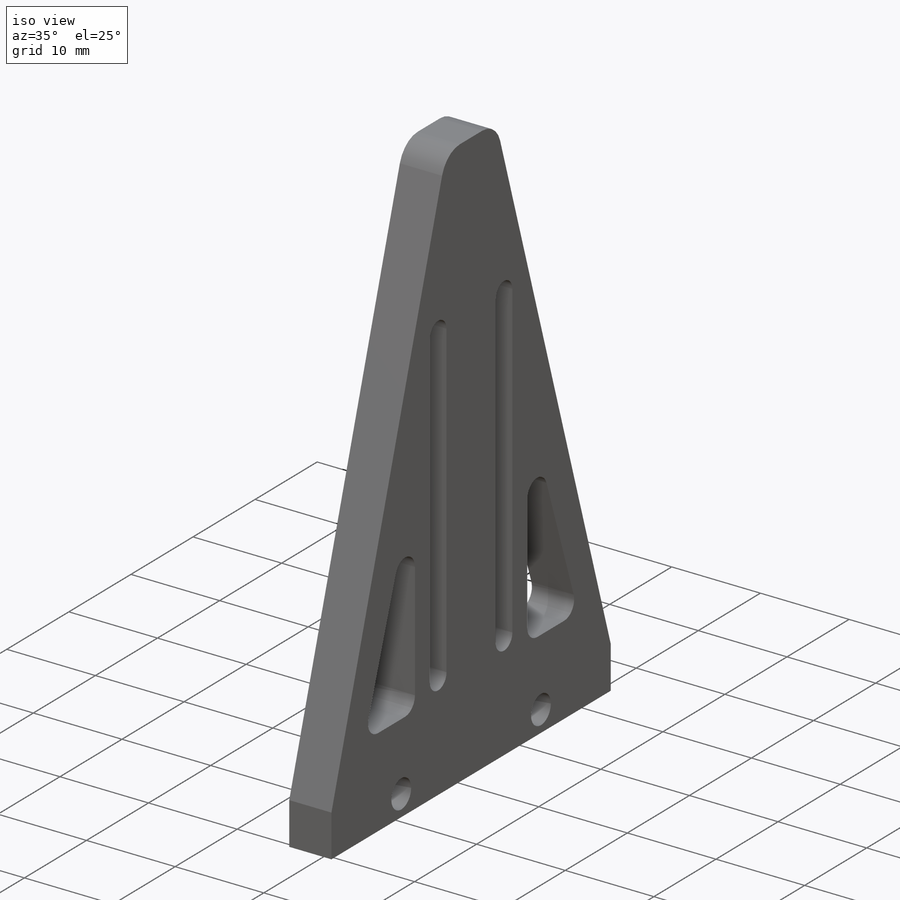
[diagram: iso view]
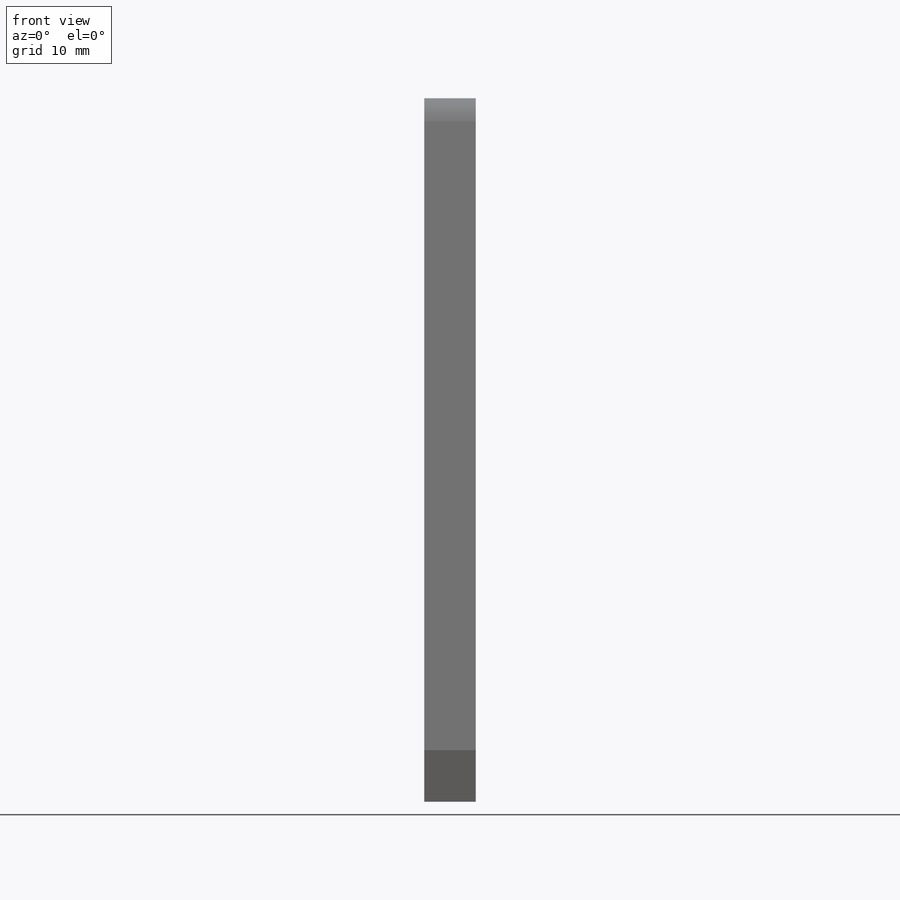
[diagram: front view]
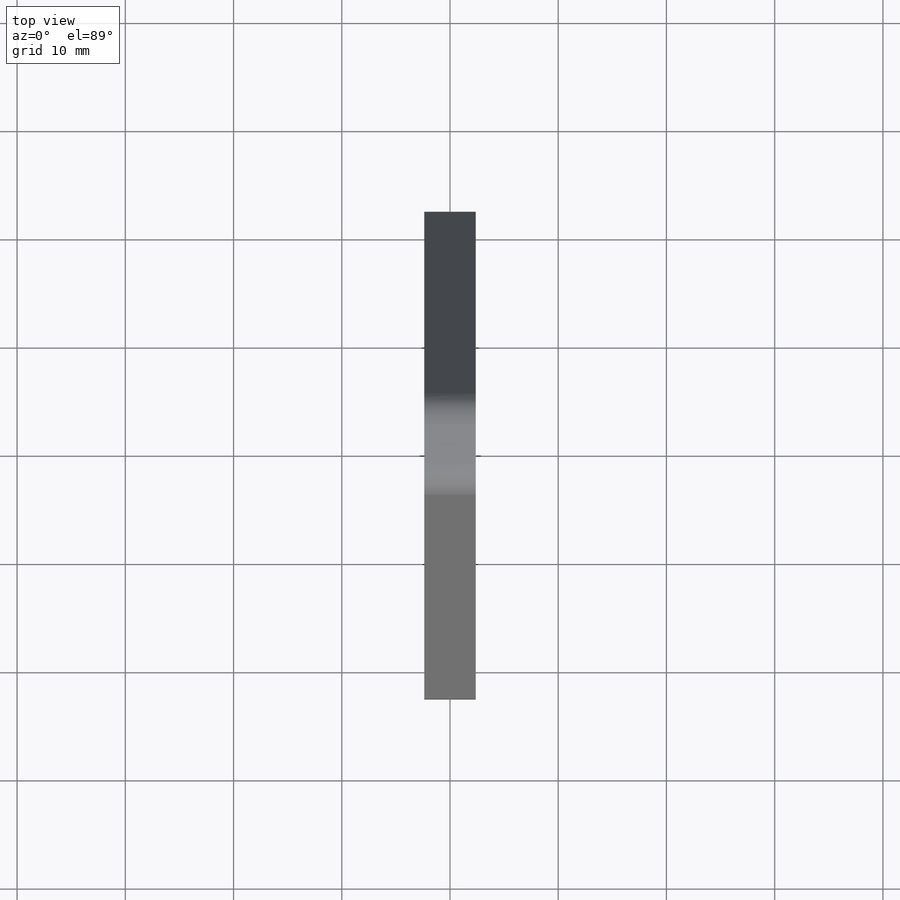
[diagram: top view]
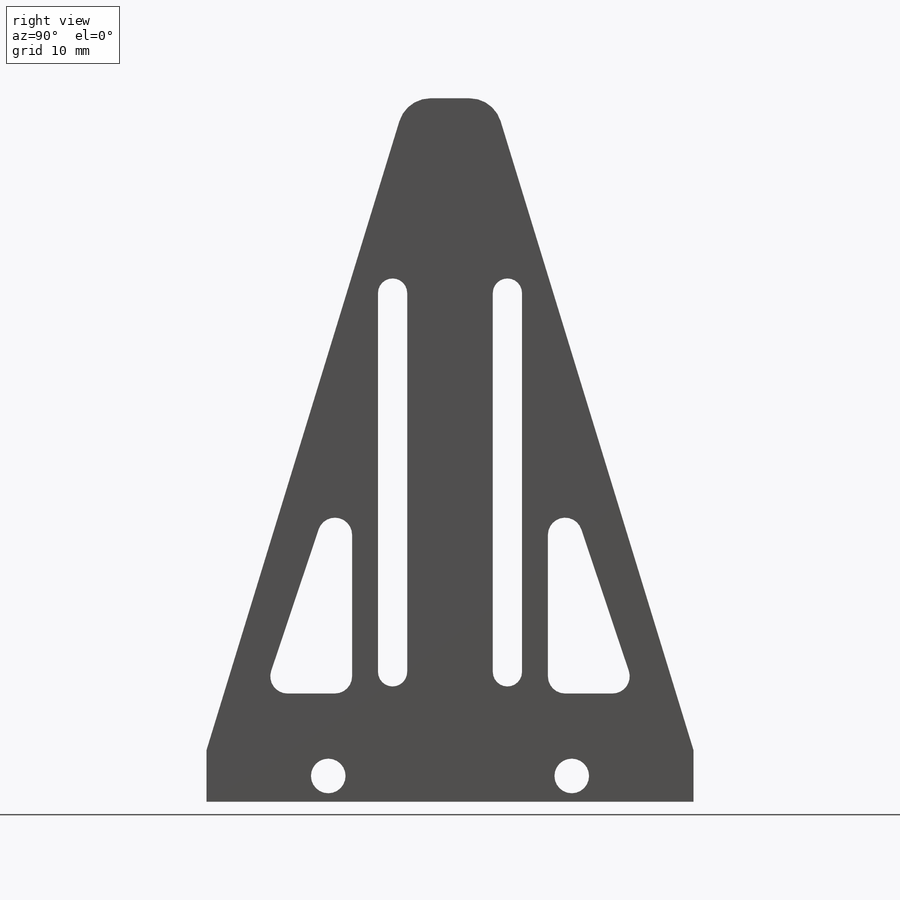
[diagram: right view]
SOLIDWORKS PART (.sldprt)
format: sldprt  version: not decoded by parser v0  size: 276,480 bytes
history: native  units: mm
features: sketch x3, material x1, extrude x1, hole x1 (+13 scaffold rows collapsed)
feature tree (19):
  scaffold x13  (default folders/planes/origin — collapsed)
  material  "6061-T6 (SS)"
  sketch  "Sketch1"  dims[c1.D1=~1.175125mm c1.D2=~1.293515mm c2.D1=3.0mm c2.D2=1.5875mm c2.D3=1.5875mm c2.D7=1.45mm c3.D1=11.25mm c3.D2=11.25mm c4.D1=~7.089431mm c4.D2=50.0mm c5.D1=~35.790245mm c5.D2=60.0mm c5.D3=~3.504382mm c6.D2=28.875mm c6.D3=5.0mm c7.D2=5.0mm c8.D2=90.0deg c9.D2=~24.597392mm c10.D2=~178.50559deg c11.D2=4.0mm c11.D4=4.763mm c11.D5=45.0mm c11.D6=65.0mm c11.D7=~2.669815mm]
  extrude  "Boss-Extrude1"  Depth=4.763mm
  hole  "M3 Clearance Hole1"  Diameter=3.2mm Depth=4.763mm
  sketch  "Sketch3"  dims[D1=11.25mm D2=11.25mm]
  sketch  "Sketch2"  dims[hole-wizard template sketch: 61 standard entries collapsed; hole parameters above]
decode coverage: 5 of 5 modeling features carry decoded parameters
note: ~ marks probable driven/reference dimensions
note: suppression state not decoded; provenance and decode notes live in map.json
